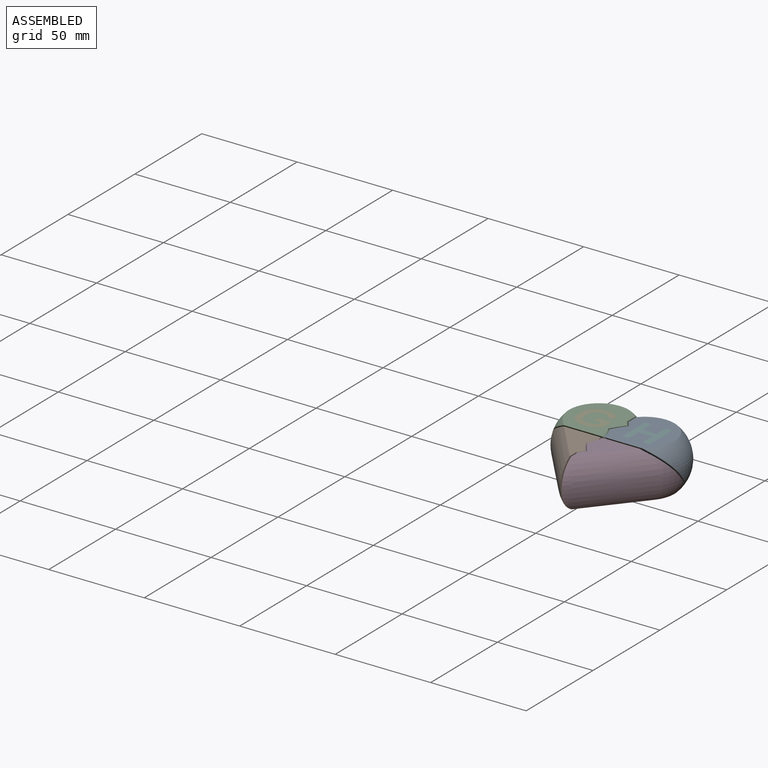
[diagram: assembled view]
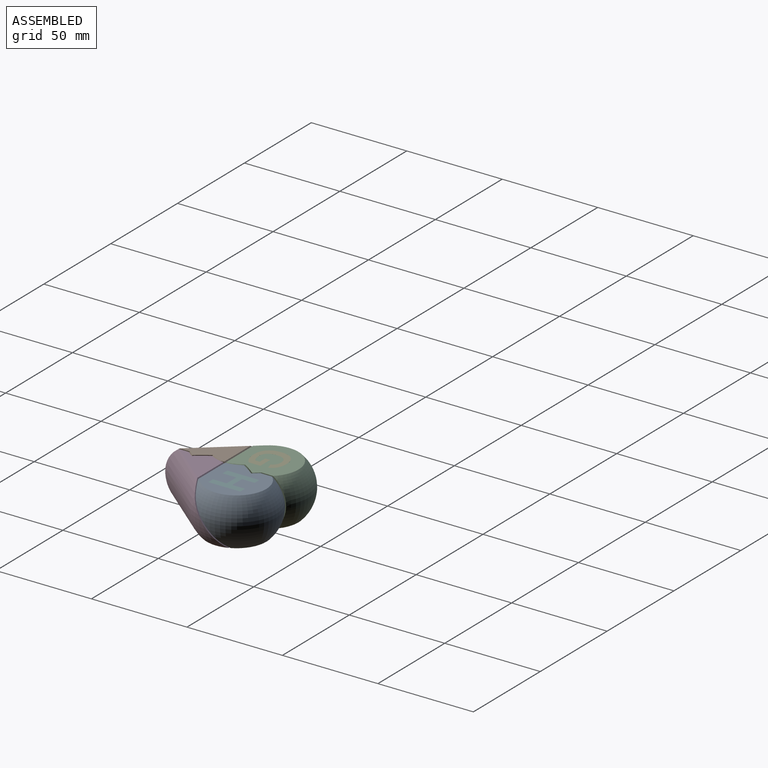
[diagram: assembled view, second angle]
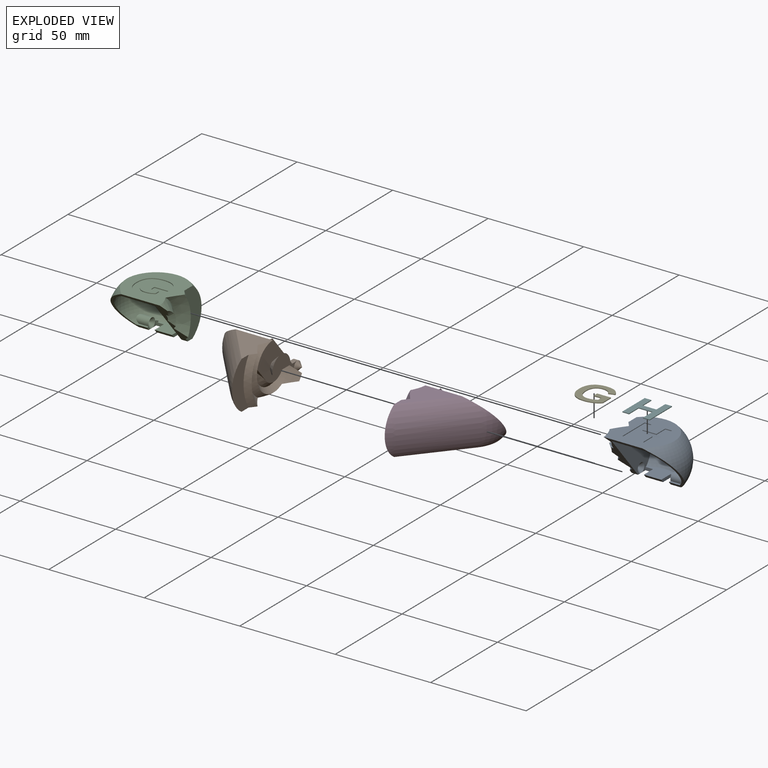
[diagram: exploded view]
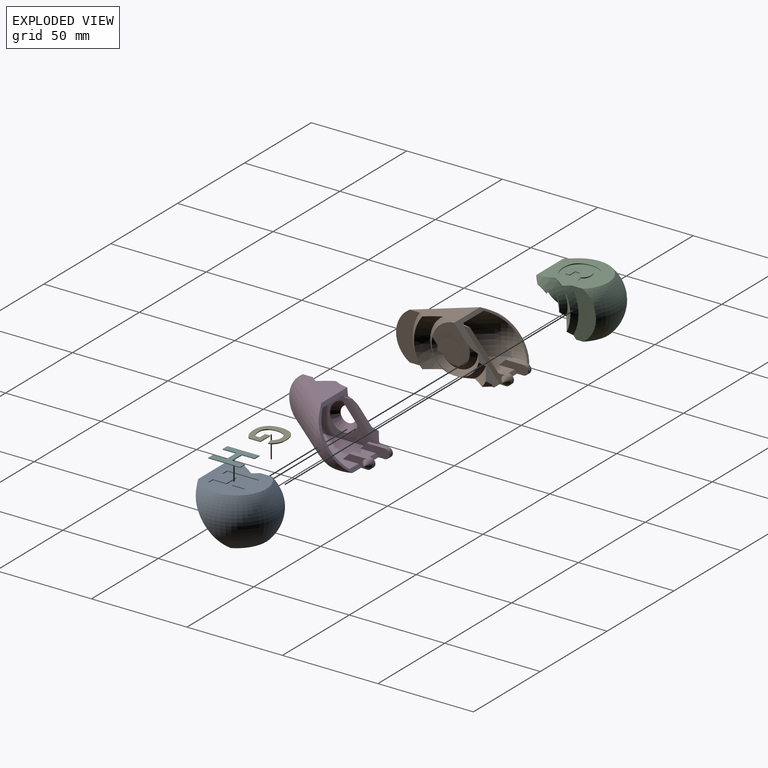
[diagram: exploded view, second angle]
ASSEMBLY  parts=6 mates=5
PART A: 47 faces, bbox 38x38.2x30.9 mm
  f0: plane 30.76x30.76mm, normal (0,0,1), area 572.4mm2, adj f6,f15,f16,f17,f18,f19,f23,f34
  f1: plane 5.68x1.29mm, normal (0,0,1), area 7mm2, adj f5,f6,f9,f31
  f2: plane 16.84x9.93mm, normal (0,0,1), area 100.1mm2, adj f4,f7,f9,f11,f13,f26,f27,f30
  f3: plane 3.13x1.25mm, normal (0,0,1), area 2.5mm2, adj f4,f5,f9,f13,f29,f30
  f4: plane 0.9x0.5mm, normal (-1,0,0), area 0.5mm2, adj f2,f3,f13,f30
  f5: cylinder r=2.5mm len=6.77mm, axis (1,0,0), area 48.2mm2, adj f1,f3,f9,f33
  f6: plane 36.43x26.69mm, normal (0,-0.77,-0.64), area 208.5mm2, adj f0,f1,f8,f9,f10,f11,f12,f14
  f7: plane 9.08x1.6mm, normal (0,-0.77,-0.64), area 19mm2, adj f2,f8,f27,f32
  f8: plane 25.67x8.77mm, normal (0,0,-1), area 127.4mm2, adj f6,f7,f11,f15,f16,f26,f27,f29
  f9: torus R=1.53mm, axis (0,0,1), area 928.6mm2, adj f1,f2,f3,f5,f6,f10,f11,f12
  f10: cylinder r=17.68mm len=3.87mm, axis (-0.64,-0.77,0), area 5.2mm2, adj f6,f9,f12
  f11: plane 30.08x23.4mm, normal (1,0,0), area 417.3mm2, adj f2,f6,f8,f9,f12,f26,f28
  f12: plane 28.22x23.77mm, normal (0,0,-1), area 588.1mm2, adj f6,f9,f10,f11
  f13: plane 1.71x0.95mm, normal (0,1,0), area 1mm2, adj f2,f3,f4,f9
  f14: plane 9.53x4.76mm, normal (-1,0,0), area 0.1mm2, adj f6,f18,f25
  f15: plane 25.01x12.95mm, normal (-1,0,0), area 206.3mm2, adj f0,f6,f8,f16,f23
  f16: torus R=3.12mm, axis (0,0,-1), area 1286.1mm2, adj f0,f6,f8,f15,f17
  f17: cylinder r=17.68mm len=5.68mm, axis (-0.64,-0.77,0), area 10.5mm2, adj f0,f6,f16
  f18: cone r=15mm half-angle=45deg, axis (-1,0,0), area 67.6mm2, adj f0,f6,f14,f19,f22
  f19: cone r=17.5mm half-angle=45deg, axis (1,0,0), area 147.9mm2, adj f0,f6,f18,f23
  f20: plane 5.01x3.26mm, normal (0,-0.64,0.77), area 11.9mm2, adj f6,f21,f22,f24,f25
  f21: cone r=10mm half-angle=45deg, axis (-1,0,0), area 6.5mm2, adj f6,f20,f22
  f22: cone r=12.5mm half-angle=45deg, axis (1,0,0), area 27.7mm2, adj f6,f18,f20,f21
  f23: cone r=20mm half-angle=45deg, axis (-1,0,0), area 82.9mm2, adj f0,f6,f15,f19
  f24: cone r=7.49mm half-angle=45deg, axis (1,0,0), area 7.4mm2, adj f6,f20,f25
  f25: cone r=9.99mm half-angle=45deg, axis (-1,0,0), area 30.3mm2, adj f6,f14,f20,f24
  f26: plane 4x1.6mm, normal (0,-1,0), area 6.4mm2, adj f2,f8,f11,f27
  f27: plane 6.87x1.6mm, normal (-1,0,0), area 9.9mm2, adj f2,f7,f8,f26
  f28: cone r=2.5mm half-angle=45deg, axis (1,0,0), area 27.8mm2, adj f11
  f29: plane 3.25x2.5mm, normal (-1,0,0), area 3.2mm2, adj f3,f8,f30,f33
  f30: plane 4x2.5mm, normal (0,-1,0), area 7.1mm2, adj f2,f3,f4,f8,f29,f32
  f31: plane 3.62x1.6mm, normal (-1,0,0), area 2mm2, adj f1,f6,f8,f33
  f32: plane 6.87x1.6mm, normal (1,0,0), area 9.9mm2, adj f2,f7,f8,f30
  f33: cone r=2.5mm half-angle=45deg, axis (-1,0,0), area 27.8mm2, adj f5,f29,f31
  f34: plane 7.17x0.4mm, normal (1,0,0), area 2.9mm2, adj f0,f35,f45,f46
  f35: plane 3.5x0.4mm, normal (0,1,0), area 1.4mm2, adj f0,f34,f36,f46
  f36: plane 16.72x0.4mm, normal (-1,0,0), area 6.7mm2, adj f0,f35,f37,f46
  f37: plane 3.5x0.4mm, normal (0,-1,0), area 1.4mm2, adj f0,f36,f38,f46
  f38: plane 6.66x0.4mm, normal (1,0,0), area 2.7mm2, adj f0,f37,f39,f46
  f39: plane 7.29x0.4mm, normal (0,-1,0), area 2.9mm2, adj f0,f38,f40,f46
  f40: plane 6.66x0.4mm, normal (-1,0,0), area 2.7mm2, adj f0,f39,f41,f46
  f41: plane 3.5x0.4mm, normal (0,-1,0), area 1.4mm2, adj f0,f40,f42,f46
  f42: plane 16.72x0.4mm, normal (1,0,0), area 6.7mm2, adj f0,f41,f43,f46
  f43: plane 3.5x0.4mm, normal (0,1,0), area 1.4mm2, adj f0,f42,f44,f46
  f44: plane 7.17x0.4mm, normal (-1,0,0), area 2.9mm2, adj f0,f43,f45,f46
  f45: plane 7.29x0.4mm, normal (0,1,0), area 2.9mm2, adj f0,f34,f44,f46
  f46: plane 16.72x14.29mm, normal (0,0,1), area 138.2mm2, adj f34,f35,f36,f37,f38,f39,f40,f41
PART B: 45 faces, bbox 36.5x57.5x33.7 mm
  f0: plane 34.98x25.37mm, normal (0,0.77,0.64), area 222.7mm2, adj f1,f3,f4,f5,f6,f7,f8,f10
  f1: plane 38.68x23.81mm, normal (0,0,1), area 531mm2, adj f0,f2,f23,f24,f25,f31,f33,f36
  f2: plane 39.67x21.8mm, normal (-1,0,0), area 624.8mm2, adj f1,f25,f26,f37
  f3: plane 19.98x19.67mm, normal (1,0,0), area 241mm2, adj f0,f5,f17,f18,f19,f20,f22,f27
  f4: cone r=10mm half-angle=45deg, axis (-1,0,0), area 42.3mm2, adj f0,f7,f16,f21
  f5: cone r=10mm half-angle=45deg, axis (-1,0,0), area 0mm2, adj f0,f3,f18
  f6: plane 23.39x22.01mm, normal (0,0,1), area 221.2mm2, adj f0,f9,f11,f13,f14,f17
  f7: plane 47.62x29.88mm, normal (0,0,-1), area 761.9mm2, adj f0,f4,f8,f9,f10,f11,f13,f14
  f8: plane 1.57x1.07mm, normal (1,0,0), area 0.8mm2, adj f0,f7,f15
  f9: plane 25.01x12.42mm, normal (1,0,0), area 193.2mm2, adj f6,f7,f11,f12,f14
  f10: torus R=3.12mm, axis (0,0,-1), area 244.2mm2, adj f0,f7,f11
  f11: cylinder r=17.68mm len=32.12mm, axis (0.64,-0.77,0), area 1024.8mm2, adj f0,f6,f7,f9,f10,f12
  f12: torus R=3.12mm, axis (0,0,-1), area 88.1mm2, adj f9,f11
  f13: cone r=20mm half-angle=45deg, axis (1,0,0), area 197.9mm2, adj f6,f7,f14,f17
  f14: cone r=22.5mm half-angle=45deg, axis (-1,0,0), area 94.8mm2, adj f6,f7,f9,f13
  f15: cone r=22.5mm half-angle=45deg, axis (-1,0,0), area 9mm2, adj f0,f7,f8,f16
  f16: cone r=20mm half-angle=45deg, axis (1,0,0), area 46.7mm2, adj f0,f4,f7,f15
  f17: cone r=10mm half-angle=45deg, axis (-1,0,0), area 112.9mm2, adj f0,f3,f6,f7,f13,f21
  f18: plane 0.01x0.01mm, normal (0,0.64,-0.77), area 0mm2, adj f0,f3,f5
  f19: cone r=10mm half-angle=45deg, axis (-1,0,0), area 97.2mm2, adj f0,f3,f20,f21,f22
  f20: plane 0.01x0.01mm, normal (0,0.64,-0.77), area 0mm2, adj f3,f19,f22
  f21: cone r=12.5mm half-angle=45deg, axis (1,0,0), area 125mm2, adj f0,f4,f17,f19,f22
  f22: plane 7.69x6.5mm, normal (0,-0.77,-0.64), area 10.2mm2, adj f3,f19,f20,f21
  f23: plane 10.58x1.6mm, normal (0,0.77,0.64), area 22.1mm2, adj f1,f7,f31,f40
  f24: torus R=1.53mm, axis (0,0,1), area 185.4mm2, adj f0,f1,f25
  f25: cylinder r=17.68mm len=30.11mm, axis (0.64,-0.77,0), area 801.7mm2, adj f0,f1,f2,f24,f26
  f26: plane 20.62x17.23mm, normal (0,0,-1), area 167.5mm2, adj f0,f2,f25,f37
  f27: cone r=1.75mm half-angle=45deg, axis (1,0,0), area 106.7mm2, adj f3,f28,f29
  f28: plane 13.5x7.56mm, normal (1,0,0), area 82.5mm2, adj f27,f29
  f29: plane 13.4x4.05mm, normal (0.42,0,-0.91), area 37.5mm2, adj f27,f28
  f30: plane 22.6x22.23mm, normal (1,0,0), area 80.8mm2, adj f0,f7,f32,f35,f37,f38
  f31: plane 15.29x5mm, normal (-1,0,0), area 53.8mm2, adj f1,f7,f23,f32,f34,f36
  f32: plane 9.52x2.63mm, normal (0,0,1), area 20.1mm2, adj f30,f31,f34,f36,f37
  f33: plane 4.56x2.48mm, normal (1,0,0), area 5.7mm2, adj f1,f36,f37
  f34: cylinder r=2.5mm len=5mm, axis (-1,0,0), area 19.6mm2, adj f7,f31,f32,f35
  f35: cone r=2.5mm half-angle=45deg, axis (-1,0,0), area 27.8mm2, adj f30,f34
  f36: plane 3.4x3.4mm, normal (0,-0.71,0.71), area 11.6mm2, adj f1,f31,f32,f33,f37
  f37: cylinder r=5.22mm len=26.75mm, axis (0,0.64,-0.77), area 172.3mm2, adj f0,f1,f2,f26,f30,f32,f33,f36
  f38: plane 3.72x0.9mm, normal (0,0,1), area 2mm2, adj f0,f30,f37
  f39: plane 12.79x5mm, normal (-1,0,0), area 34.2mm2, adj f0,f1,f7,f41,f43,f44
  f40: plane 15.29x5mm, normal (1,0,0), area 53.8mm2, adj f1,f7,f23,f41,f42,f44
  f41: plane 9.39x2.5mm, normal (0,0,1), area 23.5mm2, adj f39,f40,f42,f44
  f42: cylinder r=2.5mm len=5mm, axis (1,0,0), area 19.6mm2, adj f7,f40,f41,f43
  f43: cone r=2.5mm half-angle=45deg, axis (1,0,0), area 27.8mm2, adj f39,f42
  f44: plane 3.4x3.4mm, normal (0,-0.71,0.71), area 12mm2, adj f1,f39,f40,f41
PART C: 54 faces, bbox 36.5x33.4x29.6 mm
  f0: plane 29.88x29.88mm, normal (0,0,1), area 559.3mm2, adj f6,f14,f15,f16,f17,f18,f20,f32
  f1: plane 16.84x9.93mm, normal (0,0,1), area 100.1mm2, adj f4,f7,f9,f11,f13,f25,f27,f29
  f2: plane 5.68x1.29mm, normal (0,0,1), area 7mm2, adj f5,f6,f9,f26
  f3: plane 3.13x1.25mm, normal (0,0,1), area 2.5mm2, adj f4,f5,f9,f13,f24,f25
  f4: plane 0.9x0.5mm, normal (1,0,0), area 0.5mm2, adj f1,f3,f13,f25
  f5: cylinder r=2.5mm len=6.77mm, axis (-1,0,0), area 48.2mm2, adj f2,f3,f9,f28
  f6: plane 35.17x25.43mm, normal (0,-0.77,-0.64), area 207.3mm2, adj f0,f2,f8,f9,f10,f11,f12,f14
  f7: plane 9.08x1.6mm, normal (0,-0.77,-0.64), area 19mm2, adj f1,f8,f27,f30
  f8: plane 25.67x8.77mm, normal (0,0,-1), area 127.4mm2, adj f6,f7,f11,f14,f15,f24,f25,f26
  f9: torus R=1.53mm, axis (0,0,1), area 928.6mm2, adj f1,f2,f3,f5,f6,f10,f11,f12
  f10: cylinder r=17.68mm len=3.87mm, axis (0.64,-0.77,0), area 5.2mm2, adj f6,f9,f12
  f11: plane 30.08x23.4mm, normal (-1,0,0), area 417.3mm2, adj f1,f6,f8,f9,f12,f29,f31
  f12: plane 28.22x23.77mm, normal (0,0,-1), area 588.1mm2, adj f6,f9,f10,f11
  f13: plane 1.71x0.95mm, normal (0,1,0), area 1mm2, adj f1,f3,f4,f9
  f14: plane 25.01x12.95mm, normal (1,0,0), area 206.3mm2, adj f0,f6,f8,f15,f17
  f15: torus R=3.12mm, axis (0,0,-1), area 1277.7mm2, adj f0,f6,f8,f14,f16
  f16: cylinder r=17.68mm len=5.68mm, axis (0.64,-0.77,0), area 10.5mm2, adj f0,f6,f15
  f17: cone r=22.5mm half-angle=45deg, axis (-1,0,0), area 82.9mm2, adj f0,f6,f14,f18
  f18: cone r=20mm half-angle=45deg, axis (1,0,0), area 145mm2, adj f0,f6,f17,f20
  f19: cone r=7.5mm half-angle=45deg, axis (1,0,0), area 8.6mm2, adj f6,f20,f21
  f20: cone r=10mm half-angle=45deg, axis (-1,0,0), area 95mm2, adj f0,f6,f18,f19,f21,f23
  f21: plane 5.01x3.26mm, normal (0,0.64,-0.77), area 11.9mm2, adj f6,f19,f20,f22,f23
  f22: cone r=10mm half-angle=45deg, axis (-1,0,0), area 10.4mm2, adj f6,f21,f23
  f23: cone r=12.5mm half-angle=45deg, axis (1,0,0), area 30.4mm2, adj f6,f20,f21,f22
  f24: plane 3.25x2.5mm, normal (1,0,0), area 3.2mm2, adj f3,f8,f25,f28
  f25: plane 4x2.5mm, normal (0,-1,0), area 7.1mm2, adj f1,f3,f4,f8,f24,f27
  f26: plane 3.62x1.6mm, normal (1,0,0), area 2mm2, adj f2,f6,f8,f28
  f27: plane 6.87x1.6mm, normal (-1,0,0), area 9.9mm2, adj f1,f7,f8,f25
  f28: cone r=2.5mm half-angle=45deg, axis (1,0,0), area 27.8mm2, adj f5,f24,f26
  f29: plane 4x1.6mm, normal (0,-1,0), area 6.4mm2, adj f1,f8,f11,f30
  f30: plane 6.87x1.6mm, normal (1,0,0), area 9.9mm2, adj f1,f7,f8,f29
  f31: cone r=2.5mm half-angle=45deg, axis (-1,0,0), area 27.8mm2, adj f11
  f32: extruded ~2.65x0.4mm, area 1.1mm2, adj f0,f33,f52,f53
  f33: extruded ~3.72x1.55mm, area 1.7mm2, adj f0,f32,f34,f53
  f34: extruded ~4.39x1.32mm, area 1.9mm2, adj f0,f33,f35,f53
  f35: extruded ~4.28x1.28mm, area 1.8mm2, adj f0,f34,f36,f53
  f36: extruded ~3.75x1.5mm, area 1.7mm2, adj f0,f35,f37,f53
  f37: extruded ~2.62x0.65mm, area 1.1mm2, adj f0,f36,f38,f53
  f38: extruded ~1.92x1.64mm, area 1mm2, adj f0,f37,f39,f53
  f39: plane 3.23x0.97mm, normal (-0.29,0.96,0), area 1.3mm2, adj f0,f38,f40,f53
  f40: extruded ~7.49x4.36mm, area 3.7mm2, adj f0,f39,f41,f53
  f41: extruded ~6.35x2.2mm, area 2.8mm2, adj f0,f40,f42,f53
  f42: extruded ~6.33x2.21mm, area 2.8mm2, adj f0,f41,f43,f53
  f43: extruded ~6.42x2.2mm, area 2.8mm2, adj f0,f42,f44,f53
  f44: extruded ~6.28x2.26mm, area 2.7mm2, adj f0,f43,f45,f53
  f45: extruded ~4.47x0.77mm, area 1.8mm2, adj f0,f44,f46,f53
  f46: extruded ~3.46x2.14mm, area 1.6mm2, adj f0,f45,f47,f53
  f47: plane 6.15x0.4mm, normal (-1,0,0), area 2.5mm2, adj f0,f46,f48,f53
  f48: plane 7.28x0.4mm, normal (0,-1,0), area 2.9mm2, adj f0,f47,f49,f53
  f49: plane 2.59x0.4mm, normal (1,0,0), area 1mm2, adj f0,f48,f50,f53
  f50: plane 4.08x0.4mm, normal (0,1,0), area 1.6mm2, adj f0,f49,f51,f53
  f51: plane 2.32x0.4mm, normal (1,0,0), area 0.9mm2, adj f0,f50,f52,f53
  f52: extruded ~1.98x1.01mm, area 0.9mm2, adj f0,f32,f51,f53
  f53: plane 17.21x16.4mm, normal (0,0,1), area 142.8mm2, adj f32,f33,f34,f35,f36,f37,f38,f39
PART D: 44 faces, bbox 35.2x57.5x33.6 mm
  f0: cylinder r=5.22mm len=26.75mm, axis (0,0.64,-0.77), area 159mm2, adj f1,f2,f3,f26,f27,f29,f30,f33
  f1: plane 34.93x25.31mm, normal (0,0.77,0.64), area 223.6mm2, adj f0,f2,f4,f5,f6,f8,f9,f10
  f2: plane 38.68x23.81mm, normal (0,0,1), area 531mm2, adj f0,f1,f3,f23,f24,f25,f28,f29
  f3: plane 39.67x21.8mm, normal (1,0,0), area 484.5mm2, adj f0,f2,f25,f26,f42
  f4: plane 24.98x24.67mm, normal (-1,0,0), area 209.2mm2, adj f1,f13,f14,f16,f19,f20,f21,f22
  f5: plane 23.39x22.01mm, normal (0,0,1), area 229.7mm2, adj f1,f7,f10,f12,f13,f17
  f6: plane 47.62x29.89mm, normal (0,0,-1), area 779mm2, adj f1,f7,f8,f9,f10,f12,f13,f14
  f7: plane 25.01x12.42mm, normal (-1,0,0), area 193.2mm2, adj f5,f6,f10,f11,f17
  f8: plane 1.57x1.07mm, normal (-1,0,0), area 0.8mm2, adj f1,f6,f18
  f9: torus R=3.12mm, axis (0,0,-1), area 244.2mm2, adj f1,f6,f10
  f10: cylinder r=17.68mm len=32.12mm, axis (-0.64,-0.77,0), area 1024.8mm2, adj f1,f5,f6,f7,f9,f11
  f11: torus R=3.12mm, axis (0,0,-1), area 88.1mm2, adj f7,f10
  f12: cone r=17.5mm half-angle=45deg, axis (1,0,0), area 197.9mm2, adj f5,f6,f13,f17
  f13: cone r=15mm half-angle=45deg, axis (-1,0,0), area 112.9mm2, adj f1,f4,f5,f6,f12
  f14: cone r=15mm half-angle=45deg, axis (-1,0,0), area 42.3mm2, adj f1,f4,f6,f15
  f15: cone r=17.5mm half-angle=45deg, axis (1,0,0), area 45.8mm2, adj f1,f6,f14,f18
  f16: plane 0.02x0.01mm, normal (0,-0.64,0.77), area 0mm2, adj f1,f4,f21
  f17: cone r=20mm half-angle=45deg, axis (-1,0,0), area 94.8mm2, adj f5,f6,f7,f12
  f18: cone r=20mm half-angle=45deg, axis (-1,0,0), area 9mm2, adj f1,f6,f8,f15
  f19: plane 7.68x6.5mm, normal (0,-0.77,-0.64), area 10.2mm2, adj f4,f20,f21,f22
  f20: plane 0.02x0.01mm, normal (0,-0.64,0.77), area 0mm2, adj f4,f19,f21
  f21: cone r=7.49mm half-angle=45deg, axis (1,0,0), area 97.1mm2, adj f1,f4,f16,f19,f20,f22
  f22: cone r=9.99mm half-angle=45deg, axis (-1,0,0), area 124.9mm2, adj f1,f4,f19,f21
  f23: plane 10.58x1.6mm, normal (0,0.77,0.64), area 22.1mm2, adj f2,f6,f28,f36
  f24: torus R=1.53mm, axis (0,0,1), area 185.4mm2, adj f1,f2,f25
  f25: cylinder r=17.68mm len=30.11mm, axis (-0.64,-0.77,0), area 801.7mm2, adj f1,f2,f3,f24,f26
  f26: plane 20.62x17.23mm, normal (0,0,-1), area 167.5mm2, adj f0,f1,f3,f25
  f27: plane 22.6x22.23mm, normal (-1,0,0), area 80.8mm2, adj f0,f1,f6,f30,f32,f34
  f28: plane 15.29x5mm, normal (1,0,0), area 53.8mm2, adj f2,f6,f23,f30,f31,f33
  f29: plane 4.56x2.48mm, normal (-1,0,0), area 5.7mm2, adj f0,f2,f33
  f30: plane 9.52x2.63mm, normal (0,0,1), area 20.1mm2, adj f0,f27,f28,f31,f33
  f31: cylinder r=2.5mm len=5mm, axis (1,0,0), area 19.6mm2, adj f6,f28,f30,f32
  f32: cone r=2.5mm half-angle=45deg, axis (1,0,0), area 27.8mm2, adj f27,f31
  f33: plane 3.4x3.4mm, normal (0,-0.71,0.71), area 11.6mm2, adj f0,f2,f28,f29,f30
  f34: plane 3.72x0.9mm, normal (0,0,1), area 2mm2, adj f0,f1,f27
  f35: plane 12.79x5mm, normal (1,0,0), area 34.2mm2, adj f1,f2,f6,f37,f39,f40
  f36: plane 15.29x5mm, normal (-1,0,0), area 53.8mm2, adj f2,f6,f23,f37,f38,f40
  f37: plane 9.39x2.5mm, normal (0,0,1), area 23.5mm2, adj f35,f36,f38,f40
  f38: cylinder r=2.5mm len=5mm, axis (-1,0,0), area 19.6mm2, adj f6,f36,f37,f39
  f39: cone r=2.5mm half-angle=45deg, axis (-1,0,0), area 27.8mm2, adj f35,f38
  f40: plane 3.4x3.4mm, normal (0,-0.71,0.71), area 12mm2, adj f2,f35,f36,f37
  f41: cone r=2.48mm half-angle=45deg, axis (1,0,0), area 167.5mm2, adj f4,f42
  f42: cylinder r=7.42mm len=14.85mm, axis (-1,0,0), area 12.3mm2, adj f0,f3,f41,f43
  f43: plane 8.89x7.61mm, normal (-1,0,0), area 22.6mm2, adj f0,f42
PART E: 23 faces, bbox 16.4x17.2x0.4 mm
  f0: extruded ~2.65x0.4mm, area 1.1mm2, adj f1,f20,f21,f22
  f1: extruded ~3.72x1.55mm, area 1.7mm2, adj f0,f2,f21,f22
  f2: extruded ~4.39x1.32mm, area 1.9mm2, adj f1,f3,f21,f22
  f3: extruded ~4.28x1.28mm, area 1.8mm2, adj f2,f4,f21,f22
  f4: extruded ~3.75x1.5mm, area 1.7mm2, adj f3,f5,f21,f22
  f5: extruded ~2.62x0.65mm, area 1.1mm2, adj f4,f6,f21,f22
  f6: extruded ~1.92x1.64mm, area 1mm2, adj f5,f7,f21,f22
  f7: plane 3.23x0.97mm, normal (0.29,-0.96,0), area 1.3mm2, adj f6,f8,f21,f22
  f8: extruded ~7.49x4.36mm, area 3.7mm2, adj f7,f9,f21,f22
  f9: extruded ~6.35x2.2mm, area 2.8mm2, adj f8,f10,f21,f22
  f10: extruded ~6.33x2.21mm, area 2.8mm2, adj f9,f11,f21,f22
  f11: extruded ~6.42x2.2mm, area 2.8mm2, adj f10,f12,f21,f22
  f12: extruded ~6.28x2.26mm, area 2.7mm2, adj f11,f13,f21,f22
  f13: extruded ~4.47x0.77mm, area 1.8mm2, adj f12,f14,f21,f22
  f14: extruded ~3.46x2.14mm, area 1.6mm2, adj f13,f15,f21,f22
  f15: plane 6.15x0.4mm, normal (1,0,0), area 2.5mm2, adj f14,f16,f21,f22
  f16: plane 7.28x0.4mm, normal (0,1,0), area 2.9mm2, adj f15,f17,f21,f22
  f17: plane 2.59x0.4mm, normal (-1,0,0), area 1mm2, adj f16,f18,f21,f22
  f18: plane 4.08x0.4mm, normal (0,-1,0), area 1.6mm2, adj f17,f19,f21,f22
  f19: plane 2.32x0.4mm, normal (-1,0,0), area 0.9mm2, adj f18,f20,f21,f22
  f20: extruded ~1.98x1.01mm, area 0.9mm2, adj f0,f19,f21,f22
  f21: plane 17.21x16.4mm, normal (0,0,-1), area 142.8mm2, adj f0,f1,f2,f3,f4,f5,f6,f7
  f22: plane 17.21x16.4mm, normal (0,0,1), area 142.8mm2, adj f0,f1,f2,f3,f4,f5,f6,f7
PART F: 14 faces, bbox 14.3x16.7x0.4 mm
  f0: plane 7.17x0.4mm, normal (-1,0,0), area 2.9mm2, adj f1,f11,f12,f13
  f1: plane 3.5x0.4mm, normal (0,-1,0), area 1.4mm2, adj f0,f2,f12,f13
  f2: plane 16.72x0.4mm, normal (1,0,0), area 6.7mm2, adj f1,f3,f12,f13
  f3: plane 3.5x0.4mm, normal (0,1,0), area 1.4mm2, adj f2,f4,f12,f13
  f4: plane 6.66x0.4mm, normal (-1,0,0), area 2.7mm2, adj f3,f5,f12,f13
  f5: plane 7.29x0.4mm, normal (0,1,0), area 2.9mm2, adj f4,f6,f12,f13
  f6: plane 6.66x0.4mm, normal (1,0,0), area 2.7mm2, adj f5,f7,f12,f13
  f7: plane 3.5x0.4mm, normal (0,1,0), area 1.4mm2, adj f6,f8,f12,f13
  f8: plane 16.72x0.4mm, normal (-1,0,0), area 6.7mm2, adj f7,f9,f12,f13
  f9: plane 3.5x0.4mm, normal (0,-1,0), area 1.4mm2, adj f8,f10,f12,f13
  f10: plane 7.17x0.4mm, normal (1,0,0), area 2.9mm2, adj f9,f11,f12,f13
  f11: plane 7.29x0.4mm, normal (0,-1,0), area 2.9mm2, adj f0,f10,f12,f13
  f12: plane 16.72x14.29mm, normal (0,0,-1), area 138.2mm2, adj f0,f1,f2,f3,f4,f5,f6,f7
  f13: plane 16.72x14.29mm, normal (0,0,1), area 138.2mm2, adj f0,f1,f2,f3,f4,f5,f6,f7
PLACE A rot(axis=(1,0,0),0deg) t=(0,0,0)mm
PLACE B at identity fixed
PLACE C at identity
PLACE D rot(axis=(-1,0,0),0deg) t=(0,0,0)mm
PLACE E at identity
PLACE F rot(axis=(-1,0,0),0deg) t=(0,0,0)mm
MATE fastened F.f13 <-> A.f0  axis (0,0,1) through (20.68,5.65,12.5)mm
MATE revolute B.f4 <-> D.f12  axis (1,0,0) through (0,0,0)mm
MATE fastened E.f22 <-> C.f0  axis (0,0,1) through (-6.06,18.27,12.5)mm
MATE revolute B.f34 <-> C.f31  axis (-1,0,0) through (-1.55,23.54,-10)mm
MATE revolute D.f31 <-> A.f28  axis (1,0,0) through (1.55,23.54,-10)mm
